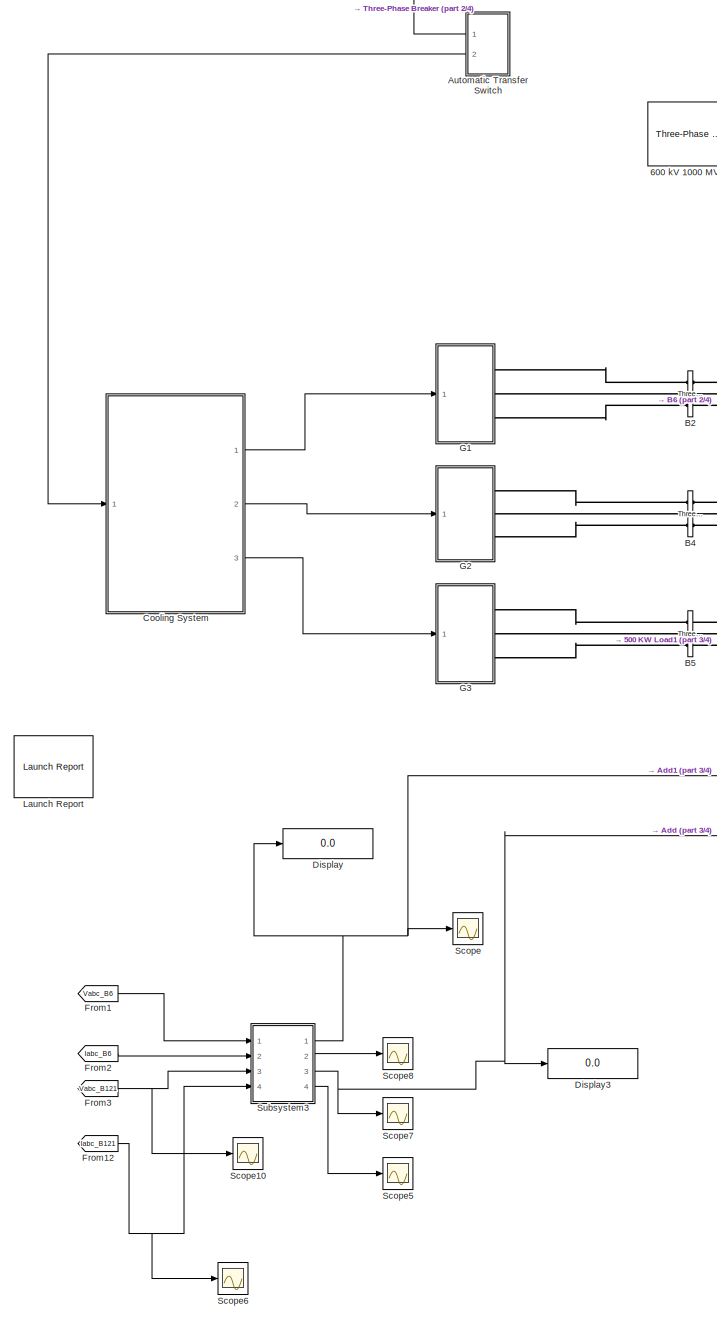
[diagram: root canvas - part 1/4, center side, full height]
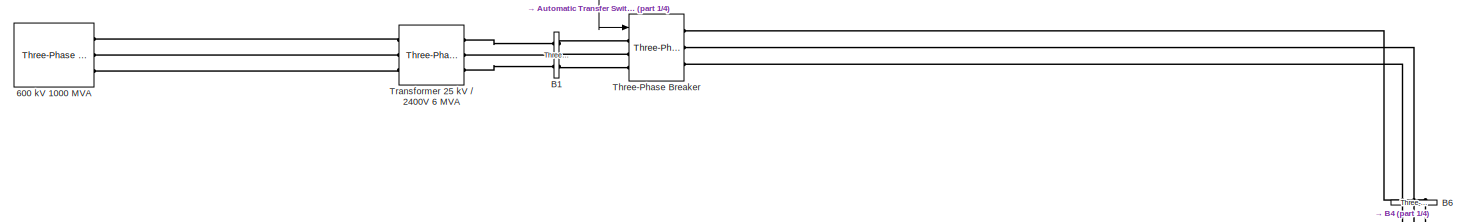
[diagram: root canvas - part 2/4, top right region]
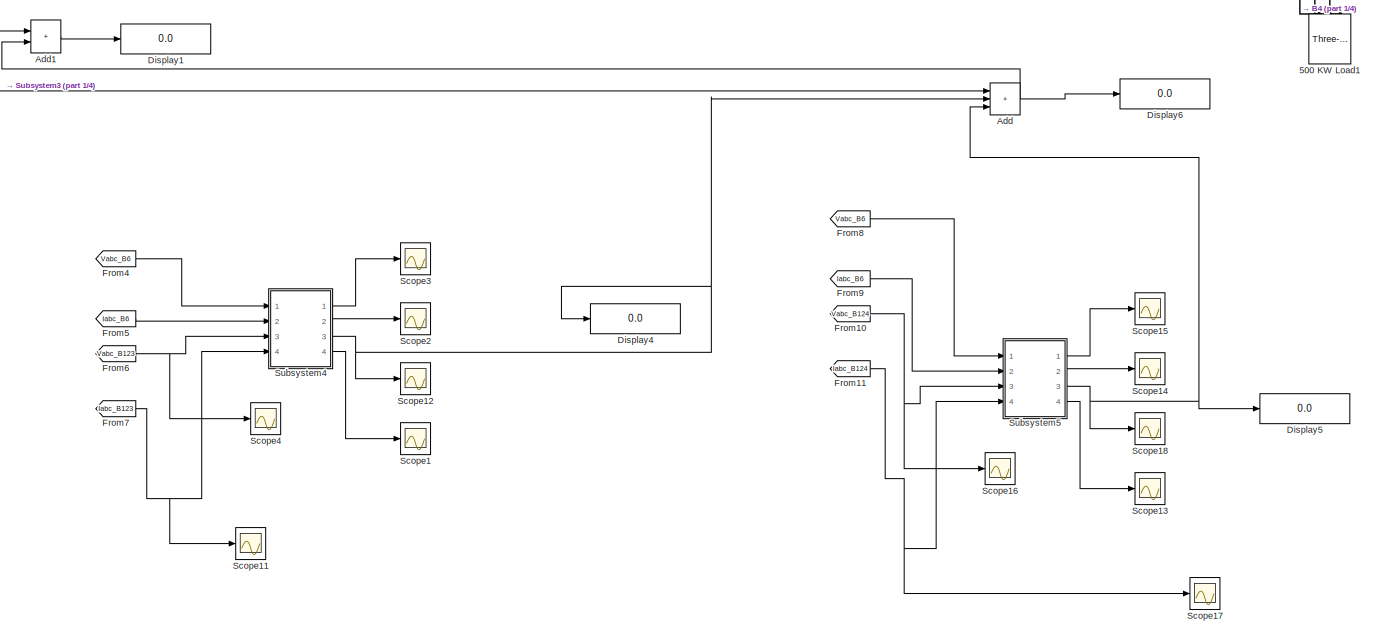
[diagram: root canvas - part 3/4, bottom right region]
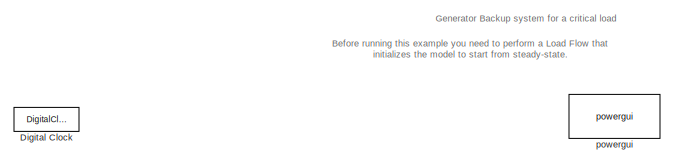
[diagram: root canvas - part 4/4, bottom left region]
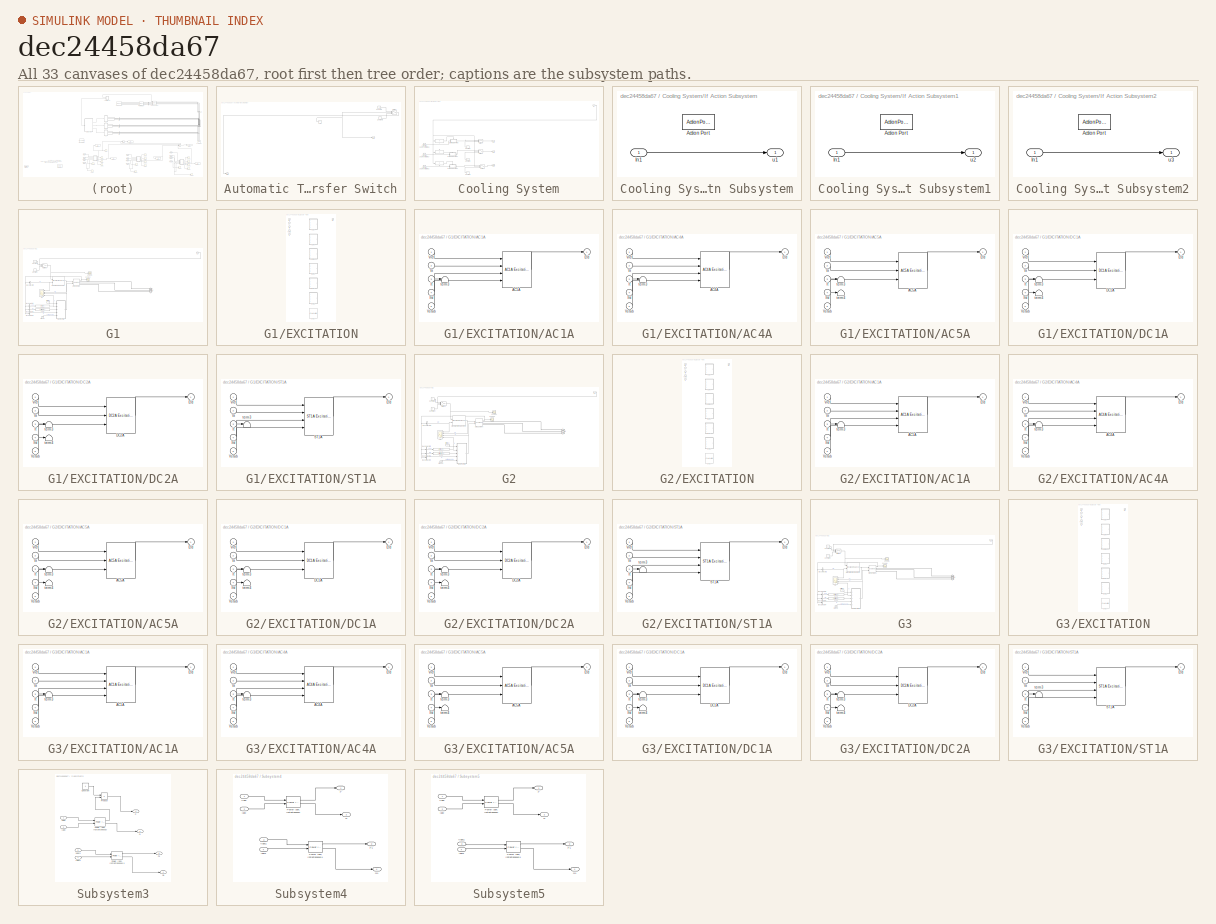
[diagram: thumbnail index - all 33 canvases of the model, root first then tree order]
MODEL slx_dec24458da67
KIND model
CONFIG AbsTol = auto
CONFIG EnableMultiTasking = off
CONFIG FixedStep = auto
CONFIG MaxStep = auto
CONFIG MinStep = auto
CONFIG RelTol = 1e-3
CONFIG SampleTimeConstraint = Unconstrained
CONFIG Solver = VariableStepAuto
CONFIG SolverName = VariableStepAuto
CONFIG StartTime = 0.0
CONFIG StopTime = 80
BLOCK [Reference] 500 KW Load1  REF=powerlib/Elements/Three-Phase
Parallel RLC Load
  AttributesFormatString = \n
  NameLocation = left
  Ports = [0, 0, 0, 0, 0, 3]
  SourceBlock = powerlib/Elements/Three-Phase\nParallel RLC Load
  SourceProductBaseCode = MT,PS
  SourceType = Three-Phase Parallel RLC Load
BLOCK [Reference] 600 kV 1000 MVA  REF=powerlib/Electrical
Sources/Three-Phase Source
  NameLocation = top
  Ports = [0, 0, 0, 0, 0, 0, 3]
  SourceBlock = powerlib/Electrical\nSources/Three-Phase Source
  SourceProductBaseCode = MT,PS
  SourceType = Three-Phase Source
BLOCK [Sum] Add
  IconShape = rectangular
  Inputs = +++
  Ports = [3, 1]
BLOCK [Sum] Add1
  IconShape = rectangular
  Ports = [2, 1]
BLOCK [SubSystem] Automatic Transfer Switch
  NameLocation = top
  Ports = [0, 2]
  RequestExecContextInheritance = off
BLOCK [Constant] Automatic Transfer Switch/ATS
  SampleTime = 1
BLOCK [Constant] Automatic Transfer Switch/Constant4
  SampleTime = 1
  Value = 0
BLOCK [Constant] Automatic Transfer Switch/Constant5
  SampleTime = 1
BLOCK [Outport] Automatic Transfer Switch/Out1
BLOCK [Outport] Automatic Transfer Switch/Out2
  Port = 2
BLOCK [Switch] Automatic Transfer Switch/Switch1
  Criteria = u2 > Threshold
  InputSameDT = off
  SaturateOnIntegerOverflow = off
BLOCK [Reference] B1  REF=powerlib/Measurements/Three-Phase
V-I Measurement
  Ports = [0, 0, 0, 0, 0, 3, 3]
  SourceBlock = powerlib/Measurements/Three-Phase\nV-I Measurement
  SourceProductBaseCode = MT,PS
  SourceType = Three-Phase VI Measurement
BLOCK [Reference] B2  REF=powerlib/Measurements/Three-Phase
V-I Measurement
  Ports = [0, 0, 0, 0, 0, 3, 3]
  SourceBlock = powerlib/Measurements/Three-Phase\nV-I Measurement
  SourceProductBaseCode = MT,PS
  SourceType = Three-Phase VI Measurement
BLOCK [Reference] B4  REF=powerlib/Measurements/Three-Phase
V-I Measurement
  Ports = [0, 0, 0, 0, 0, 3, 3]
  SourceBlock = powerlib/Measurements/Three-Phase\nV-I Measurement
  SourceProductBaseCode = MT,PS
  SourceType = Three-Phase VI Measurement
BLOCK [Reference] B5  REF=powerlib/Measurements/Three-Phase
V-I Measurement
  Ports = [0, 0, 0, 0, 0, 3, 3]
  SourceBlock = powerlib/Measurements/Three-Phase\nV-I Measurement
  SourceProductBaseCode = MT,PS
  SourceType = Three-Phase VI Measurement
BLOCK [Reference] B6  REF=powerlib/Measurements/Three-Phase
V-I Measurement
  NameLocation = left
  Ports = [0, 0, 0, 0, 0, 3, 3]
  SourceBlock = powerlib/Measurements/Three-Phase\nV-I Measurement
  SourceProductBaseCode = MT,PS
  SourceType = Three-Phase VI Measurement
BLOCK [SubSystem] Cooling System
  Ports = [1, 3]
  RequestExecContextInheritance = off
BLOCK [Constant] Cooling System/Constant1
  SampleTime = 1
  Value = 0
BLOCK [Constant] Cooling System/Constant2
  SampleTime = 1
  Value = 0
BLOCK [Constant] Cooling System/Constant6
  SampleTime = 1
  Value = 0
BLOCK [If] Cooling System/If
  IfExpression = u1 == 1
  Ports = [1, 1]
  ShowElse = off
BLOCK [SubSystem] Cooling System/If Action Subsystem
  Ports = [1, 1, 0, 0, 0, 0, 0, 1]
  RequestExecContextInheritance = off
  TreatAsAtomicUnit = on
BLOCK [ActionPort] Cooling System/If Action Subsystem/Action Port
  ActionPortLabel = if(u1 == 1)
BLOCK [Inport] Cooling System/If Action Subsystem/In1
BLOCK [Outport] Cooling System/If Action Subsystem/u1
BLOCK [SubSystem] Cooling System/If Action Subsystem1
  Ports = [1, 1, 0, 0, 0, 0, 0, 1]
  RequestExecContextInheritance = off
  TreatAsAtomicUnit = on
BLOCK [ActionPort] Cooling System/If Action Subsystem1/Action Port
  ActionPortLabel = if(u1 == 1)
BLOCK [Inport] Cooling System/If Action Subsystem1/In1
BLOCK [Outport] Cooling System/If Action Subsystem1/u2
BLOCK [SubSystem] Cooling System/If Action Subsystem2
  Ports = [1, 1, 0, 0, 0, 0, 0, 1]
  RequestExecContextInheritance = off
  TreatAsAtomicUnit = on
BLOCK [ActionPort] Cooling System/If Action Subsystem2/Action Port
  ActionPortLabel = if(u1 == 1)
BLOCK [Inport] Cooling System/If Action Subsystem2/In1
BLOCK [Outport] Cooling System/If Action Subsystem2/u3
BLOCK [If] Cooling System/If1
  IfExpression = u1 == 1
  Ports = [1, 1]
  ShowElse = off
BLOCK [If] Cooling System/If2
  IfExpression = u1 == 1
  Ports = [1, 1]
  ShowElse = off
BLOCK [Inport] Cooling System/In1
BLOCK [Outport] Cooling System/Out1
BLOCK [Outport] Cooling System/Out2
  Port = 2
BLOCK [Outport] Cooling System/Out3
  Port = 3
BLOCK [Reference] Cooling System/Repeating Sequence Interpolated6  REF=simulink/Sources/Repeating
Sequence
Interpolated
  Ports = [0, 1]
  SourceBlock = simulink/Sources/Repeating\nSequence\nInterpolated
  SourceProductBaseCode = SL
  SourceType = Repeating Sequence Interpolated
BLOCK [Reference] Cooling System/Repeating Sequence Interpolated7  REF=simulink/Sources/Repeating
Sequence
Interpolated
  Ports = [0, 1]
  SourceBlock = simulink/Sources/Repeating\nSequence\nInterpolated
  SourceProductBaseCode = SL
  SourceType = Repeating Sequence Interpolated
BLOCK [Reference] Cooling System/Repeating Sequence Interpolated8  REF=simulink/Sources/Repeating
Sequence
Interpolated
  Ports = [0, 1]
  SourceBlock = simulink/Sources/Repeating\nSequence\nInterpolated
  SourceProductBaseCode = SL
  SourceType = Repeating Sequence Interpolated
BLOCK [Switch] Cooling System/Switch2
  Criteria = u2 > Threshold
  InputSameDT = off
  SaturateOnIntegerOverflow = off
BLOCK [Switch] Cooling System/Switch3
  Criteria = u2 > Threshold
  InputSameDT = off
  SaturateOnIntegerOverflow = off
BLOCK [Switch] Cooling System/Switch4
  Criteria = u2 > Threshold
  InputSameDT = off
  SaturateOnIntegerOverflow = off
BLOCK [DigitalClock] Digital Clock
  IOType = siggen
BLOCK [Display] Display
  Decimation = 1
  Ports = [1]
BLOCK [Display] Display1
  Decimation = 1
  Ports = [1]
BLOCK [Display] Display3
  Decimation = 1
  Ports = [1]
BLOCK [Display] Display4
  Decimation = 1
  Ports = [1]
BLOCK [Display] Display5
  Decimation = 1
  Ports = [1]
BLOCK [Display] Display6
  Decimation = 1
  Ports = [1]
BLOCK [From] From1
  GotoTag = Vabc_B6
  TagVisibility = global
BLOCK [From] From10
  GotoTag = Vabc_B124
  IconDisplay = Tag and signal name
  TagVisibility = global
BLOCK [From] From11
  GotoTag = Iabc_B124
  TagVisibility = global
BLOCK [From] From12
  GotoTag = Iabc_B121
  TagVisibility = global
BLOCK [From] From2
  GotoTag = Iabc_B6
  TagVisibility = global
BLOCK [From] From3
  GotoTag = Vabc_B121
  IconDisplay = Tag and signal name
  TagVisibility = global
BLOCK [From] From4
  GotoTag = Vabc_B6
  TagVisibility = global
BLOCK [From] From5
  GotoTag = Iabc_B6
  TagVisibility = global
BLOCK [From] From6
  GotoTag = Vabc_B123
  IconDisplay = Tag and signal name
  TagVisibility = global
BLOCK [From] From7
  GotoTag = Iabc_B123
  TagVisibility = global
BLOCK [From] From8
  GotoTag = Vabc_B6
  TagVisibility = global
BLOCK [From] From9
  GotoTag = Iabc_B6
  TagVisibility = global
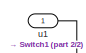
[diagram: G1 - part 1/2, top right region]
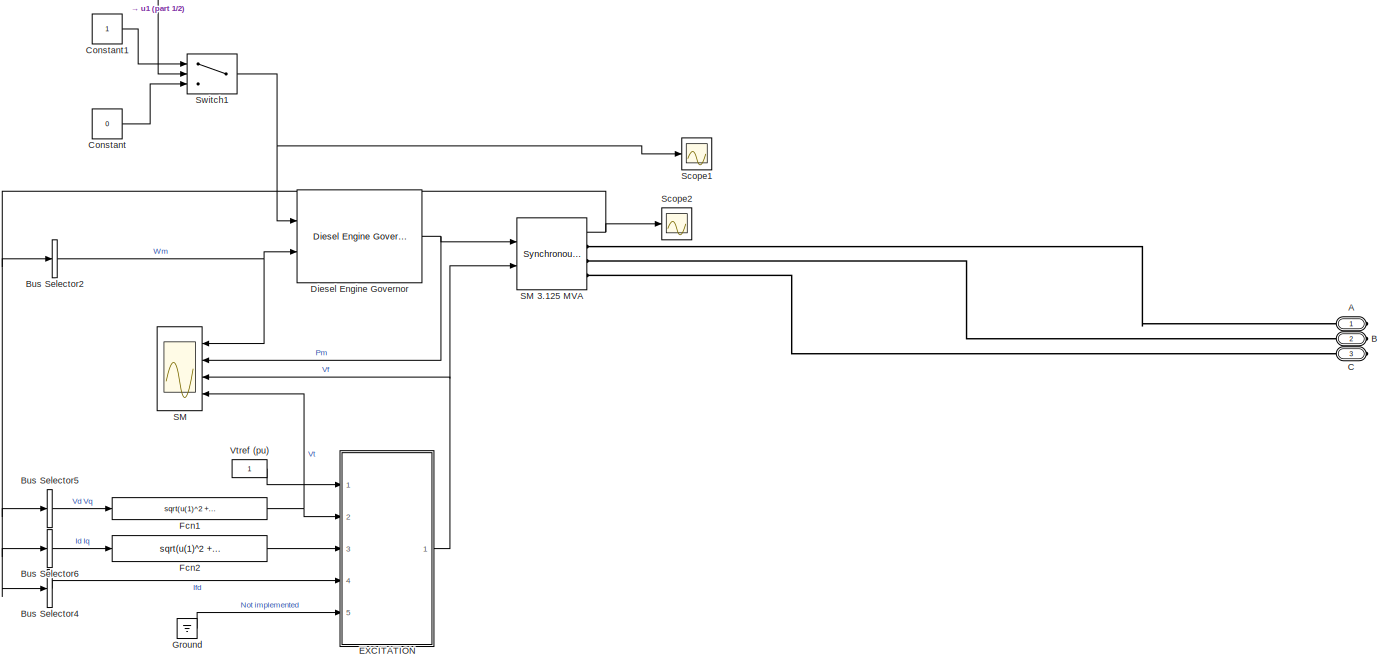
[diagram: G1 - part 2/2, center side, full height]
BLOCK [SubSystem] G1
  Ports = [1, 0, 0, 0, 0, 0, 3]
  RequestExecContextInheritance = off
BLOCK [PMIOPort] G1/A
  Side = Right
BLOCK [PMIOPort] G1/B
  Port = 2
  Side = Right
BLOCK [BusSelector] G1/Bus Selector2
  NameLocation = top
  OutputAsBus = on
  OutputSignals = Mechanical.Rotor speed  wm  (pu)
  Ports = [1, 1]
BLOCK [BusSelector] G1/Bus Selector4
  OutputAsBus = on
  OutputSignals = dq0 components.Field current  ifd (pu)
  Ports = [1, 1]
BLOCK [BusSelector] G1/Bus Selector5
  OutputAsBus = on
  OutputSignals = dq0 components.Stator voltage  vd (pu),dq0 components.Stator voltage  vq (pu)
  Ports = [1, 1]
BLOCK [BusSelector] G1/Bus Selector6
  OutputAsBus = on
  OutputSignals = dq0 components.Stator current  id (pu),dq0 components.Stator current  iq (pu)
  Ports = [1, 1]
BLOCK [PMIOPort] G1/C
  Port = 3
  Side = Right
BLOCK [Constant] G1/Constant
  Value = 0
BLOCK [Constant] G1/Constant1
BLOCK [Reference] G1/Diesel Engine Governor  REF=spsDieselMotorModel/Diesel Engine Governor
  Ports = [2, 1]
  SourceBlock = spsDieselMotorModel/Diesel Engine Governor
  SourceProductBaseCode = MT,PS
  SourceType = Diesel Engine & Governor
BLOCK [SubSystem] G1/EXCITATION
  AttributesFormatString = %<BlockChoice>
  LabelModeActiveChoice = Variant1
  Ports = [5, 1]
  RequestExecContextInheritance = off
  Variant = on
  VariantControlMode = Label
BLOCK [SubSystem] G1/EXCITATION/AC1A
  Ports = [5, 1]
  RequestExecContextInheritance = off
  VariantControl = Variant1
BLOCK [Reference] G1/EXCITATION/AC1A/AC1A  REF=sps_avr/AC1A
Excitation System
  Ports = [4, 1]
  SourceBlock = sps_avr/AC1A\nExcitation System
  SourceProductBaseCode = MT,PS
  SourceType = AC1A Excitation System
BLOCK [Outport] G1/EXCITATION/AC1A/Efd
  VectorParamsAs1DForOutWhenUnconnected = off
BLOCK [Inport] G1/EXCITATION/AC1A/Ifd
  Port = 4
BLOCK [Inport] G1/EXCITATION/AC1A/It
  Port = 3
BLOCK [Inport] G1/EXCITATION/AC1A/Vref
BLOCK [Inport] G1/EXCITATION/AC1A/Vstab
  Port = 5
BLOCK [Inport] G1/EXCITATION/AC1A/Vt
  Port = 2
BLOCK [Terminator] G1/EXCITATION/AC1A/term3
BLOCK [SubSystem] G1/EXCITATION/AC4A
  Ports = [5, 1]
  RequestExecContextInheritance = off
  VariantControl = Variant2
BLOCK [Reference] G1/EXCITATION/AC4A/AC4A  REF=sps_avr/AC4A
Excitation System
  Ports = [4, 1]
  SourceBlock = sps_avr/AC4A\nExcitation System
  SourceProductBaseCode = MT,PS
  SourceType = AC4A Excitation System
BLOCK [Outport] G1/EXCITATION/AC4A/Efd
  VectorParamsAs1DForOutWhenUnconnected = off
BLOCK [Inport] G1/EXCITATION/AC4A/Ifd
  Port = 4
BLOCK [Inport] G1/EXCITATION/AC4A/It
  Port = 3
BLOCK [Inport] G1/EXCITATION/AC4A/Vref
BLOCK [Inport] G1/EXCITATION/AC4A/Vstab
  Port = 5
BLOCK [Inport] G1/EXCITATION/AC4A/Vt
  Port = 2
BLOCK [Terminator] G1/EXCITATION/AC4A/term3
BLOCK [SubSystem] G1/EXCITATION/AC5A
  Ports = [5, 1]
  RequestExecContextInheritance = off
  VariantControl = Variant3
BLOCK [Reference] G1/EXCITATION/AC5A/AC5A  REF=sps_avr/AC5A
Excitation System
  Ports = [3, 1]
  SourceBlock = sps_avr/AC5A\nExcitation System
  SourceProductBaseCode = MT,PS
  SourceType = AC5A Excitation System
BLOCK [Outport] G1/EXCITATION/AC5A/Efd
  VectorParamsAs1DForOutWhenUnconnected = off
BLOCK [Inport] G1/EXCITATION/AC5A/Ifd
  Port = 4
BLOCK [Inport] G1/EXCITATION/AC5A/It
  Port = 3
BLOCK [Inport] G1/EXCITATION/AC5A/Vref
BLOCK [Inport] G1/EXCITATION/AC5A/Vstab
  Port = 5
BLOCK [Inport] G1/EXCITATION/AC5A/Vt
  Port = 2
BLOCK [Terminator] G1/EXCITATION/AC5A/term3
BLOCK [Terminator] G1/EXCITATION/AC5A/term4
BLOCK [SubSystem] G1/EXCITATION/DC1A
  Ports = [5, 1]
  RequestExecContextInheritance = off
  VariantControl = Variant4
BLOCK [Reference] G1/EXCITATION/DC1A/DC1A  REF=sps_avr/DC1A
Excitation System
  Ports = [3, 1]
  SourceBlock = sps_avr/DC1A\nExcitation System
  SourceProductBaseCode = MT,PS
  SourceType = DC1A Excitation System
BLOCK [Outport] G1/EXCITATION/DC1A/Efd
  VectorParamsAs1DForOutWhenUnconnected = off
BLOCK [Inport] G1/EXCITATION/DC1A/Ifd
  Port = 4
BLOCK [Inport] G1/EXCITATION/DC1A/It
  Port = 3
BLOCK [Inport] G1/EXCITATION/DC1A/Vref
BLOCK [Inport] G1/EXCITATION/DC1A/Vstab
  Port = 5
BLOCK [Inport] G1/EXCITATION/DC1A/Vt
  Port = 2
BLOCK [Terminator] G1/EXCITATION/DC1A/term3
BLOCK [Terminator] G1/EXCITATION/DC1A/term4
BLOCK [SubSystem] G1/EXCITATION/DC2A
  Ports = [5, 1]
  RequestExecContextInheritance = off
  VariantControl = Variant5
BLOCK [Reference] G1/EXCITATION/DC2A/DC2A  REF=sps_avr/DC2A
Excitation System
  Ports = [3, 1]
  SourceBlock = sps_avr/DC2A\nExcitation System
  SourceProductBaseCode = MT,PS
  SourceType = DC2A Excitation System
BLOCK [Outport] G1/EXCITATION/DC2A/Efd
  VectorParamsAs1DForOutWhenUnconnected = off
BLOCK [Inport] G1/EXCITATION/DC2A/Ifd
  Port = 4
BLOCK [Inport] G1/EXCITATION/DC2A/It
  Port = 3
BLOCK [Inport] G1/EXCITATION/DC2A/Vref
BLOCK [Inport] G1/EXCITATION/DC2A/Vstab
  Port = 5
BLOCK [Inport] G1/EXCITATION/DC2A/Vt
  Port = 2
BLOCK [Terminator] G1/EXCITATION/DC2A/term3
BLOCK [Terminator] G1/EXCITATION/DC2A/term4
BLOCK [Outport] G1/EXCITATION/Efd
  VectorParamsAs1DForOutWhenUnconnected = off
BLOCK [Inport] G1/EXCITATION/Ifd
  Port = 4
BLOCK [Inport] G1/EXCITATION/It
  Port = 3
BLOCK [SubSystem] G1/EXCITATION/ST1A
  Ports = [5, 1]
  RequestExecContextInheritance = off
  VariantControl = Variant6
BLOCK [Outport] G1/EXCITATION/ST1A/Efd
  VectorParamsAs1DForOutWhenUnconnected = off
BLOCK [Inport] G1/EXCITATION/ST1A/Ifd
  Port = 4
BLOCK [Inport] G1/EXCITATION/ST1A/It
  Port = 3
BLOCK [Reference] G1/EXCITATION/ST1A/ST1A  REF=sps_avr/ST1A
Excitation System
  Ports = [4, 1]
  SourceBlock = sps_avr/ST1A\nExcitation System
  SourceProductBaseCode = MT,PS
  SourceType = ST1A Excitation System
BLOCK [Inport] G1/EXCITATION/ST1A/Vref
BLOCK [Inport] G1/EXCITATION/ST1A/Vstab
  Port = 5
BLOCK [Inport] G1/EXCITATION/ST1A/Vt
  Port = 2
BLOCK [Terminator] G1/EXCITATION/ST1A/term3
BLOCK [Reference] G1/EXCITATION/ST2A  REF=sps_avr/ST2A
Excitation System
  Ports = [5, 1]
  SourceBlock = sps_avr/ST2A\nExcitation System
  SourceProductBaseCode = MT,PS
  SourceType = ST2A Excitation System
BLOCK [Inport] G1/EXCITATION/Vref
BLOCK [Inport] G1/EXCITATION/Vstab
  Port = 5
BLOCK [Inport] G1/EXCITATION/Vt
  Port = 2
BLOCK [Fcn] G1/Fcn1
  Expr = sqrt(u(1)^2 + u(2)^2)
BLOCK [Fcn] G1/Fcn2
  Expr = sqrt(u(1)^2 + u(2)^2)
BLOCK [Ground] G1/Ground
BLOCK [Scope] G1/SM
  Floating = off
  NameLocation = top
  NumInputPorts = 4
  Ports = [4]
  ScopeSpecificationString = Simulink.scopes.TimeScopeBlockCfg('CurrentConfiguration', extmgr.ConfigurationSet(extmgr.Configuration('Core','General UI',true),extmgr.Configuration('Core','Source UI',true),extmgr.Configuration('Sources','WiredSimulink',true,'DataLoggingSaveFormat','Array','DataLoggingDecimation','1','DataLoggingDecimateData',true),extmgr.Configuration('Visuals','Time Domain',true,'SerializedDisplays',{struct('M...<+3685ch>  <repeated x3 — deduplicated; at blocks: SM>
BLOCK [Reference] G1/SM 3.125 MVA  REF=powerlib/Machines/Synchronous Machine
pu Standard
  AttributesFormatString = \n\n
  Ports = [2, 1, 0, 0, 0, 0, 3]
  SourceBlock = powerlib/Machines/Synchronous Machine\npu Standard
  SourceProductBaseCode = MT,PS
  SourceType = Synchronous Machine
BLOCK [Scope] G1/Scope1
  Floating = off
  NumInputPorts = 1
  Ports = [1]
  ScopeSpecificationString = Simulink.scopes.TimeScopeBlockCfg('CurrentConfiguration', extmgr.ConfigurationSet(extmgr.Configuration('Core','General UI',true),extmgr.Configuration('Core','Source UI',true),extmgr.Configuration('Sources','WiredSimulink',true,'DataLoggingVariableName','ScopeData1'),extmgr.Configuration('Visuals','Time Domain',true,'SerializedDisplays',{struct('MinYLimReal','-1.00000','MaxYLimReal','1.00000','YLab...<+1437ch>  <repeated x3 — deduplicated; at blocks: Scope1>
BLOCK [Scope] G1/Scope2
  Floating = off
  NumInputPorts = 1
  Ports = [1]
  ScopeSpecificationString = Simulink.scopes.TimeScopeBlockCfg('CurrentConfiguration', extmgr.ConfigurationSet(extmgr.Configuration('Core','General UI',true),extmgr.Configuration('Core','Source UI',true),extmgr.Configuration('Sources','WiredSimulink',true,'DataLoggingVariableName','ScopeData4'),extmgr.Configuration('Visuals','Time Domain',true,'SerializedDisplays',{struct('MinYLimReal','-3.47618','MaxYLimReal','257.3983','YLa...<+3245ch>  <repeated x3 — deduplicated; at blocks: Scope2>
BLOCK [Switch] G1/Switch1
  Criteria = u2 > Threshold
  InputSameDT = off
  SaturateOnIntegerOverflow = off
BLOCK [Constant] G1/Vtref (pu) 
  NameLocation = top
BLOCK [Inport] G1/u1
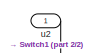
[diagram: G2 - part 1/2, top right region]
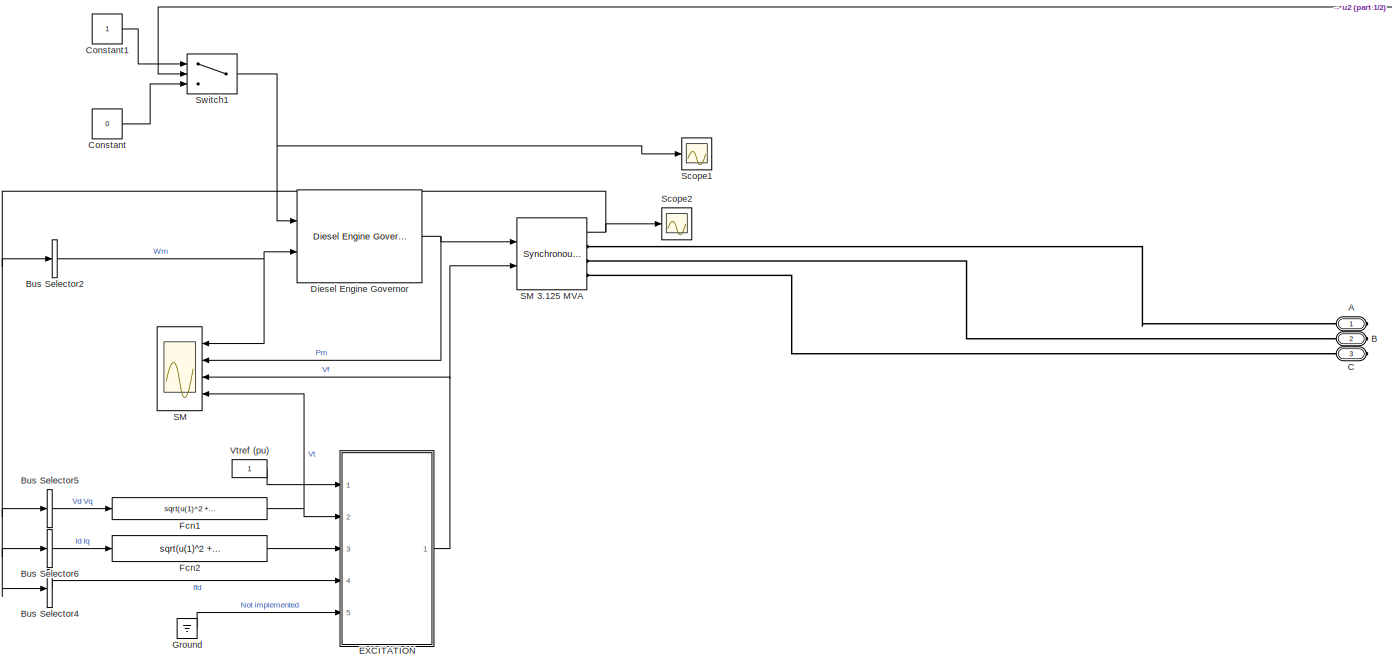
[diagram: G2 - part 2/2, most of the canvas]
BLOCK [SubSystem] G2
  Ports = [1, 0, 0, 0, 0, 0, 3]
  RequestExecContextInheritance = off
BLOCK [PMIOPort] G2/A
  Side = Right
BLOCK [PMIOPort] G2/B
  Port = 2
  Side = Right
BLOCK [BusSelector] G2/Bus Selector2
  NameLocation = top
  OutputAsBus = on
  OutputSignals = Mechanical.Rotor speed  wm  (pu)
  Ports = [1, 1]
BLOCK [BusSelector] G2/Bus Selector4
  OutputAsBus = on
  OutputSignals = dq0 components.Field current  ifd (pu)
  Ports = [1, 1]
BLOCK [BusSelector] G2/Bus Selector5
  OutputAsBus = on
  OutputSignals = dq0 components.Stator voltage  vd (pu),dq0 components.Stator voltage  vq (pu)
  Ports = [1, 1]
BLOCK [BusSelector] G2/Bus Selector6
  OutputAsBus = on
  OutputSignals = dq0 components.Stator current  id (pu),dq0 components.Stator current  iq (pu)
  Ports = [1, 1]
BLOCK [PMIOPort] G2/C
  Port = 3
  Side = Right
BLOCK [Constant] G2/Constant
  Value = 0
BLOCK [Constant] G2/Constant1
BLOCK [Reference] G2/Diesel Engine Governor  REF=spsDieselMotorModel/Diesel Engine Governor
  Ports = [2, 1]
  SourceBlock = spsDieselMotorModel/Diesel Engine Governor
  SourceProductBaseCode = MT,PS
  SourceType = Diesel Engine & Governor
BLOCK [SubSystem] G2/EXCITATION
  AttributesFormatString = %<BlockChoice>
  LabelModeActiveChoice = Variant1
  Ports = [5, 1]
  RequestExecContextInheritance = off
  Variant = on
  VariantControlMode = Label
BLOCK [SubSystem] G2/EXCITATION/AC1A
  Ports = [5, 1]
  RequestExecContextInheritance = off
  VariantControl = Variant1
BLOCK [Reference] G2/EXCITATION/AC1A/AC1A  REF=sps_avr/AC1A
Excitation System
  Ports = [4, 1]
  SourceBlock = sps_avr/AC1A\nExcitation System
  SourceProductBaseCode = MT,PS
  SourceType = AC1A Excitation System
BLOCK [Outport] G2/EXCITATION/AC1A/Efd
  VectorParamsAs1DForOutWhenUnconnected = off
BLOCK [Inport] G2/EXCITATION/AC1A/Ifd
  Port = 4
BLOCK [Inport] G2/EXCITATION/AC1A/It
  Port = 3
BLOCK [Inport] G2/EXCITATION/AC1A/Vref
BLOCK [Inport] G2/EXCITATION/AC1A/Vstab
  Port = 5
BLOCK [Inport] G2/EXCITATION/AC1A/Vt
  Port = 2
BLOCK [Terminator] G2/EXCITATION/AC1A/term3
BLOCK [SubSystem] G2/EXCITATION/AC4A
  Ports = [5, 1]
  RequestExecContextInheritance = off
  VariantControl = Variant2
BLOCK [Reference] G2/EXCITATION/AC4A/AC4A  REF=sps_avr/AC4A
Excitation System
  Ports = [4, 1]
  SourceBlock = sps_avr/AC4A\nExcitation System
  SourceProductBaseCode = MT,PS
  SourceType = AC4A Excitation System
BLOCK [Outport] G2/EXCITATION/AC4A/Efd
  VectorParamsAs1DForOutWhenUnconnected = off
BLOCK [Inport] G2/EXCITATION/AC4A/Ifd
  Port = 4
BLOCK [Inport] G2/EXCITATION/AC4A/It
  Port = 3
BLOCK [Inport] G2/EXCITATION/AC4A/Vref
BLOCK [Inport] G2/EXCITATION/AC4A/Vstab
  Port = 5
BLOCK [Inport] G2/EXCITATION/AC4A/Vt
  Port = 2
BLOCK [Terminator] G2/EXCITATION/AC4A/term3
BLOCK [SubSystem] G2/EXCITATION/AC5A
  Ports = [5, 1]
  RequestExecContextInheritance = off
  VariantControl = Variant3
BLOCK [Reference] G2/EXCITATION/AC5A/AC5A  REF=sps_avr/AC5A
Excitation System
  Ports = [3, 1]
  SourceBlock = sps_avr/AC5A\nExcitation System
  SourceProductBaseCode = MT,PS
  SourceType = AC5A Excitation System
BLOCK [Outport] G2/EXCITATION/AC5A/Efd
  VectorParamsAs1DForOutWhenUnconnected = off
BLOCK [Inport] G2/EXCITATION/AC5A/Ifd
  Port = 4
BLOCK [Inport] G2/EXCITATION/AC5A/It
  Port = 3
BLOCK [Inport] G2/EXCITATION/AC5A/Vref
BLOCK [Inport] G2/EXCITATION/AC5A/Vstab
  Port = 5
BLOCK [Inport] G2/EXCITATION/AC5A/Vt
  Port = 2
BLOCK [Terminator] G2/EXCITATION/AC5A/term3
BLOCK [Terminator] G2/EXCITATION/AC5A/term4
BLOCK [SubSystem] G2/EXCITATION/DC1A
  Ports = [5, 1]
  RequestExecContextInheritance = off
  VariantControl = Variant4
BLOCK [Reference] G2/EXCITATION/DC1A/DC1A  REF=sps_avr/DC1A
Excitation System
  Ports = [3, 1]
  SourceBlock = sps_avr/DC1A\nExcitation System
  SourceProductBaseCode = MT,PS
  SourceType = DC1A Excitation System
BLOCK [Outport] G2/EXCITATION/DC1A/Efd
  VectorParamsAs1DForOutWhenUnconnected = off
BLOCK [Inport] G2/EXCITATION/DC1A/Ifd
  Port = 4
BLOCK [Inport] G2/EXCITATION/DC1A/It
  Port = 3
BLOCK [Inport] G2/EXCITATION/DC1A/Vref
BLOCK [Inport] G2/EXCITATION/DC1A/Vstab
  Port = 5
BLOCK [Inport] G2/EXCITATION/DC1A/Vt
  Port = 2
BLOCK [Terminator] G2/EXCITATION/DC1A/term3
BLOCK [Terminator] G2/EXCITATION/DC1A/term4
BLOCK [SubSystem] G2/EXCITATION/DC2A
  Ports = [5, 1]
  RequestExecContextInheritance = off
  VariantControl = Variant5
BLOCK [Reference] G2/EXCITATION/DC2A/DC2A  REF=sps_avr/DC2A
Excitation System
  Ports = [3, 1]
  SourceBlock = sps_avr/DC2A\nExcitation System
  SourceProductBaseCode = MT,PS
  SourceType = DC2A Excitation System
BLOCK [Outport] G2/EXCITATION/DC2A/Efd
  VectorParamsAs1DForOutWhenUnconnected = off
BLOCK [Inport] G2/EXCITATION/DC2A/Ifd
  Port = 4
BLOCK [Inport] G2/EXCITATION/DC2A/It
  Port = 3
BLOCK [Inport] G2/EXCITATION/DC2A/Vref
BLOCK [Inport] G2/EXCITATION/DC2A/Vstab
  Port = 5
BLOCK [Inport] G2/EXCITATION/DC2A/Vt
  Port = 2
BLOCK [Terminator] G2/EXCITATION/DC2A/term3
BLOCK [Terminator] G2/EXCITATION/DC2A/term4
BLOCK [Outport] G2/EXCITATION/Efd
  VectorParamsAs1DForOutWhenUnconnected = off
BLOCK [Inport] G2/EXCITATION/Ifd
  Port = 4
BLOCK [Inport] G2/EXCITATION/It
  Port = 3
BLOCK [SubSystem] G2/EXCITATION/ST1A
  Ports = [5, 1]
  RequestExecContextInheritance = off
  VariantControl = Variant6
BLOCK [Outport] G2/EXCITATION/ST1A/Efd
  VectorParamsAs1DForOutWhenUnconnected = off
BLOCK [Inport] G2/EXCITATION/ST1A/Ifd
  Port = 4
BLOCK [Inport] G2/EXCITATION/ST1A/It
  Port = 3
BLOCK [Reference] G2/EXCITATION/ST1A/ST1A  REF=sps_avr/ST1A
Excitation System
  Ports = [4, 1]
  SourceBlock = sps_avr/ST1A\nExcitation System
  SourceProductBaseCode = MT,PS
  SourceType = ST1A Excitation System
BLOCK [Inport] G2/EXCITATION/ST1A/Vref
BLOCK [Inport] G2/EXCITATION/ST1A/Vstab
  Port = 5
BLOCK [Inport] G2/EXCITATION/ST1A/Vt
  Port = 2
BLOCK [Terminator] G2/EXCITATION/ST1A/term3
BLOCK [Reference] G2/EXCITATION/ST2A  REF=sps_avr/ST2A
Excitation System
  Ports = [5, 1]
  SourceBlock = sps_avr/ST2A\nExcitation System
  SourceProductBaseCode = MT,PS
  SourceType = ST2A Excitation System
BLOCK [Inport] G2/EXCITATION/Vref
BLOCK [Inport] G2/EXCITATION/Vstab
  Port = 5
BLOCK [Inport] G2/EXCITATION/Vt
  Port = 2
BLOCK [Fcn] G2/Fcn1
  Expr = sqrt(u(1)^2 + u(2)^2)
BLOCK [Fcn] G2/Fcn2
  Expr = sqrt(u(1)^2 + u(2)^2)
BLOCK [Ground] G2/Ground
BLOCK [Scope] G2/SM
  Floating = off
  NameLocation = top
  NumInputPorts = 4
  Ports = [4]
BLOCK [Reference] G2/SM 3.125 MVA  REF=powerlib/Machines/Synchronous Machine
pu Standard
  AttributesFormatString = \n\n
  Ports = [2, 1, 0, 0, 0, 0, 3]
  SourceBlock = powerlib/Machines/Synchronous Machine\npu Standard
  SourceProductBaseCode = MT,PS
  SourceType = Synchronous Machine
BLOCK [Scope] G2/Scope1
  Floating = off
  NumInputPorts = 1
  Ports = [1]
BLOCK [Scope] G2/Scope2
  Floating = off
  NumInputPorts = 1
  Ports = [1]
BLOCK [Switch] G2/Switch1
  Criteria = u2 > Threshold
  InputSameDT = off
  SaturateOnIntegerOverflow = off
BLOCK [Constant] G2/Vtref (pu) 
  NameLocation = top
BLOCK [Inport] G2/u2
BLOCK [SubSystem] G3
  Ports = [1, 0, 0, 0, 0, 0, 3]
  RequestExecContextInheritance = off
BLOCK [PMIOPort] G3/A
  Side = Right
BLOCK [PMIOPort] G3/B
  Port = 2
  Side = Right
BLOCK [BusSelector] G3/Bus Selector2
  NameLocation = top
  OutputAsBus = on
  OutputSignals = Mechanical.Rotor speed  wm  (pu)
  Ports = [1, 1]
BLOCK [BusSelector] G3/Bus Selector4
  OutputAsBus = on
  OutputSignals = dq0 components.Field current  ifd (pu)
  Ports = [1, 1]
BLOCK [BusSelector] G3/Bus Selector5
  OutputAsBus = on
  OutputSignals = dq0 components.Stator voltage  vd (pu),dq0 components.Stator voltage  vq (pu)
  Ports = [1, 1]
BLOCK [BusSelector] G3/Bus Selector6
  OutputAsBus = on
  OutputSignals = dq0 components.Stator current  id (pu),dq0 components.Stator current  iq (pu)
  Ports = [1, 1]
BLOCK [PMIOPort] G3/C
  Port = 3
  Side = Right
BLOCK [Constant] G3/Constant
  Value = 0
BLOCK [Constant] G3/Constant1
BLOCK [Reference] G3/Diesel Engine Governor  REF=spsDieselMotorModel/Diesel Engine Governor
  Ports = [2, 1]
  SourceBlock = spsDieselMotorModel/Diesel Engine Governor
  SourceProductBaseCode = MT,PS
  SourceType = Diesel Engine & Governor
BLOCK [SubSystem] G3/EXCITATION
  AttributesFormatString = %<BlockChoice>
  LabelModeActiveChoice = Variant1
  Ports = [5, 1]
  RequestExecContextInheritance = off
  Variant = on
  VariantControlMode = Label
BLOCK [SubSystem] G3/EXCITATION/AC1A
  Ports = [5, 1]
  RequestExecContextInheritance = off
  VariantControl = Variant1
BLOCK [Reference] G3/EXCITATION/AC1A/AC1A  REF=sps_avr/AC1A
Excitation System
  Ports = [4, 1]
  SourceBlock = sps_avr/AC1A\nExcitation System
  SourceProductBaseCode = MT,PS
  SourceType = AC1A Excitation System
BLOCK [Outport] G3/EXCITATION/AC1A/Efd
  VectorParamsAs1DForOutWhenUnconnected = off
BLOCK [Inport] G3/EXCITATION/AC1A/Ifd
  Port = 4
BLOCK [Inport] G3/EXCITATION/AC1A/It
  Port = 3
BLOCK [Inport] G3/EXCITATION/AC1A/Vref
BLOCK [Inport] G3/EXCITATION/AC1A/Vstab
  Port = 5
BLOCK [Inport] G3/EXCITATION/AC1A/Vt
  Port = 2
BLOCK [Terminator] G3/EXCITATION/AC1A/term3
BLOCK [SubSystem] G3/EXCITATION/AC4A
  Ports = [5, 1]
  RequestExecContextInheritance = off
  VariantControl = Variant2
BLOCK [Reference] G3/EXCITATION/AC4A/AC4A  REF=sps_avr/AC4A
Excitation System
  Ports = [4, 1]
  SourceBlock = sps_avr/AC4A\nExcitation System
  SourceProductBaseCode = MT,PS
  SourceType = AC4A Excitation System
BLOCK [Outport] G3/EXCITATION/AC4A/Efd
  VectorParamsAs1DForOutWhenUnconnected = off
BLOCK [Inport] G3/EXCITATION/AC4A/Ifd
  Port = 4
BLOCK [Inport] G3/EXCITATION/AC4A/It
  Port = 3
BLOCK [Inport] G3/EXCITATION/AC4A/Vref
BLOCK [Inport] G3/EXCITATION/AC4A/Vstab
  Port = 5
BLOCK [Inport] G3/EXCITATION/AC4A/Vt
  Port = 2
BLOCK [Terminator] G3/EXCITATION/AC4A/term3
BLOCK [SubSystem] G3/EXCITATION/AC5A
  Ports = [5, 1]
  RequestExecContextInheritance = off
  VariantControl = Variant3
BLOCK [Reference] G3/EXCITATION/AC5A/AC5A  REF=sps_avr/AC5A
Excitation System
  Ports = [3, 1]
  SourceBlock = sps_avr/AC5A\nExcitation System
  SourceProductBaseCode = MT,PS
  SourceType = AC5A Excitation System
BLOCK [Outport] G3/EXCITATION/AC5A/Efd
  VectorParamsAs1DForOutWhenUnconnected = off
BLOCK [Inport] G3/EXCITATION/AC5A/Ifd
  Port = 4
BLOCK [Inport] G3/EXCITATION/AC5A/It
  Port = 3
BLOCK [Inport] G3/EXCITATION/AC5A/Vref
BLOCK [Inport] G3/EXCITATION/AC5A/Vstab
  Port = 5
BLOCK [Inport] G3/EXCITATION/AC5A/Vt
  Port = 2
BLOCK [Terminator] G3/EXCITATION/AC5A/term3
BLOCK [Terminator] G3/EXCITATION/AC5A/term4
BLOCK [SubSystem] G3/EXCITATION/DC1A
  Ports = [5, 1]
  RequestExecContextInheritance = off
  VariantControl = Variant4
BLOCK [Reference] G3/EXCITATION/DC1A/DC1A  REF=sps_avr/DC1A
Excitation System
  Ports = [3, 1]
  SourceBlock = sps_avr/DC1A\nExcitation System
  SourceProductBaseCode = MT,PS
  SourceType = DC1A Excitation System
BLOCK [Outport] G3/EXCITATION/DC1A/Efd
  VectorParamsAs1DForOutWhenUnconnected = off
BLOCK [Inport] G3/EXCITATION/DC1A/Ifd
  Port = 4
BLOCK [Inport] G3/EXCITATION/DC1A/It
  Port = 3
BLOCK [Inport] G3/EXCITATION/DC1A/Vref
BLOCK [Inport] G3/EXCITATION/DC1A/Vstab
  Port = 5
BLOCK [Inport] G3/EXCITATION/DC1A/Vt
  Port = 2
BLOCK [Terminator] G3/EXCITATION/DC1A/term3
BLOCK [Terminator] G3/EXCITATION/DC1A/term4
BLOCK [SubSystem] G3/EXCITATION/DC2A
  Ports = [5, 1]
  RequestExecContextInheritance = off
  VariantControl = Variant5
BLOCK [Reference] G3/EXCITATION/DC2A/DC2A  REF=sps_avr/DC2A
Excitation System
  Ports = [3, 1]
  SourceBlock = sps_avr/DC2A\nExcitation System
  SourceProductBaseCode = MT,PS
  SourceType = DC2A Excitation System
BLOCK [Outport] G3/EXCITATION/DC2A/Efd
  VectorParamsAs1DForOutWhenUnconnected = off
BLOCK [Inport] G3/EXCITATION/DC2A/Ifd
  Port = 4
BLOCK [Inport] G3/EXCITATION/DC2A/It
  Port = 3
BLOCK [Inport] G3/EXCITATION/DC2A/Vref
BLOCK [Inport] G3/EXCITATION/DC2A/Vstab
  Port = 5
BLOCK [Inport] G3/EXCITATION/DC2A/Vt
  Port = 2
BLOCK [Terminator] G3/EXCITATION/DC2A/term3
BLOCK [Terminator] G3/EXCITATION/DC2A/term4
BLOCK [Outport] G3/EXCITATION/Efd
  VectorParamsAs1DForOutWhenUnconnected = off
BLOCK [Inport] G3/EXCITATION/Ifd
  Port = 4
BLOCK [Inport] G3/EXCITATION/It
  Port = 3
BLOCK [SubSystem] G3/EXCITATION/ST1A
  Ports = [5, 1]
  RequestExecContextInheritance = off
  VariantControl = Variant6
BLOCK [Outport] G3/EXCITATION/ST1A/Efd
  VectorParamsAs1DForOutWhenUnconnected = off
BLOCK [Inport] G3/EXCITATION/ST1A/Ifd
  Port = 4
BLOCK [Inport] G3/EXCITATION/ST1A/It
  Port = 3
BLOCK [Reference] G3/EXCITATION/ST1A/ST1A  REF=sps_avr/ST1A
Excitation System
  Ports = [4, 1]
  SourceBlock = sps_avr/ST1A\nExcitation System
  SourceProductBaseCode = MT,PS
  SourceType = ST1A Excitation System
BLOCK [Inport] G3/EXCITATION/ST1A/Vref
BLOCK [Inport] G3/EXCITATION/ST1A/Vstab
  Port = 5
BLOCK [Inport] G3/EXCITATION/ST1A/Vt
  Port = 2
BLOCK [Terminator] G3/EXCITATION/ST1A/term3
BLOCK [Reference] G3/EXCITATION/ST2A  REF=sps_avr/ST2A
Excitation System
  Ports = [5, 1]
  SourceBlock = sps_avr/ST2A\nExcitation System
  SourceProductBaseCode = MT,PS
  SourceType = ST2A Excitation System
BLOCK [Inport] G3/EXCITATION/Vref
BLOCK [Inport] G3/EXCITATION/Vstab
  Port = 5
BLOCK [Inport] G3/EXCITATION/Vt
  Port = 2
BLOCK [Fcn] G3/Fcn1
  Expr = sqrt(u(1)^2 + u(2)^2)
BLOCK [Fcn] G3/Fcn2
  Expr = sqrt(u(1)^2 + u(2)^2)
BLOCK [Ground] G3/Ground
BLOCK [Scope] G3/SM
  Floating = off
  NameLocation = top
  NumInputPorts = 4
  Ports = [4]
BLOCK [Reference] G3/SM 3.125 MVA  REF=powerlib/Machines/Synchronous Machine
pu Standard
  AttributesFormatString = \n\n
  Ports = [2, 1, 0, 0, 0, 0, 3]
  SourceBlock = powerlib/Machines/Synchronous Machine\npu Standard
  SourceProductBaseCode = MT,PS
  SourceType = Synchronous Machine
BLOCK [Scope] G3/Scope1
  Floating = off
  NumInputPorts = 1
  Ports = [1]
BLOCK [Scope] G3/Scope2
  Floating = off
  NumInputPorts = 1
  Ports = [1]
BLOCK [Switch] G3/Switch1
  Criteria = u2 > Threshold
  InputSameDT = off
  SaturateOnIntegerOverflow = off
BLOCK [Constant] G3/Vtref (pu) 
  NameLocation = top
BLOCK [Inport] G3/u3
BLOCK [Reference] Launch Report  REF=rptgenlib/Launch Report
  Description = Reports on the current system or model
  Ports = []
  SourceBlock = rptgenlib/Launch Report
  SourceProductBaseCode = SR
  SourceType = rptgen_generate_report
  Tag = rptgen_sl
BLOCK [Scope] Scope
  Floating = off
  NumInputPorts = 1
  Ports = [1]
  ScopeSpecificationString = Simulink.scopes.TimeScopeBlockCfg('CurrentConfiguration', extmgr.ConfigurationSet(extmgr.Configuration('Core','General UI',true),extmgr.Configuration('Core','Source UI',true),extmgr.Configuration('Sources','WiredSimulink',true,'DataLoggingVariableName','ScopeData22'),extmgr.Configuration('Visuals','Time Domain',true,'SerializedDisplays',{struct('MinYLimReal','-3940866.78651','MaxYLimReal','2502482...<+1487ch>
BLOCK [Scope] Scope1
  Floating = off
  NumInputPorts = 1
  Ports = [1]
  ScopeSpecificationString = Simulink.scopes.TimeScopeBlockCfg('CurrentConfiguration', extmgr.ConfigurationSet(extmgr.Configuration('Core','General UI',true),extmgr.Configuration('Core','Source UI',true),extmgr.Configuration('Sources','WiredSimulink',true,'DataLoggingVariableName','ScopeData5'),extmgr.Configuration('Visuals','Time Domain',true,'SerializedDisplays',{struct('MinYLimReal','0.00000000000000004','MaxYLimReal','0.0...<+1556ch>
BLOCK [Scope] Scope10
  Floating = off
  NumInputPorts = 1
  Ports = [1]
  ScopeSpecificationString = Simulink.scopes.TimeScopeBlockCfg('CurrentConfiguration', extmgr.ConfigurationSet(extmgr.Configuration('Core','General UI',true),extmgr.Configuration('Core','Source UI',true),extmgr.Configuration('Sources','WiredSimulink',true,'DataLoggingVariableName','ScopeData2'),extmgr.Configuration('Visuals','Time Domain',true,'SerializedDisplays',{struct('MinYLimReal','-3511.90822','MaxYLimReal','3511.86953'...<+1589ch>
BLOCK [Scope] Scope11
  Floating = off
  NumInputPorts = 1
  Ports = [1]
  ScopeSpecificationString = Simulink.scopes.TimeScopeBlockCfg('CurrentConfiguration', extmgr.ConfigurationSet(extmgr.Configuration('Core','General UI',true),extmgr.Configuration('Core','Source UI',true),extmgr.Configuration('Sources','WiredSimulink',true,'DataLoggingVariableName','ScopeData6'),extmgr.Configuration('Visuals','Time Domain',true,'SerializedDisplays',{struct('MinYLimReal','-2114.75933','MaxYLimReal','1721.56499'...<+1454ch>
BLOCK [Scope] Scope12
  Floating = off
  NumInputPorts = 1
  Ports = [1]
  ScopeSpecificationString = Simulink.scopes.TimeScopeBlockCfg('CurrentConfiguration', extmgr.ConfigurationSet(extmgr.Configuration('Core','General UI',true),extmgr.Configuration('Core','Source UI',true),extmgr.Configuration('Sources','WiredSimulink',true,'DataLoggingVariableName','ScopeData12'),extmgr.Configuration('Visuals','Time Domain',true,'SerializedDisplays',{struct('MinYLimReal','-5419460.33704','MaxYLimReal','7676673...<+1518ch>
BLOCK [Scope] Scope13
  Floating = off
  NumInputPorts = 1
  Ports = [1]
  ScopeSpecificationString = Simulink.scopes.TimeScopeBlockCfg('CurrentConfiguration', extmgr.ConfigurationSet(extmgr.Configuration('Core','General UI',true),extmgr.Configuration('Core','Source UI',true),extmgr.Configuration('Sources','WiredSimulink',true,'DataLoggingVariableName','ScopeData16'),extmgr.Configuration('Visuals','Time Domain',true,'SerializedDisplays',{struct('MinYLimReal','0.00000000000000004','MaxYLimReal','0....<+1557ch>
BLOCK [Scope] Scope14
  Floating = off
  NumInputPorts = 1
  Ports = [1]
  ScopeSpecificationString = Simulink.scopes.TimeScopeBlockCfg('CurrentConfiguration', extmgr.ConfigurationSet(extmgr.Configuration('Core','General UI',true),extmgr.Configuration('Core','Source UI',true),extmgr.Configuration('Sources','WiredSimulink',true,'DataLoggingVariableName','ScopeData17'),extmgr.Configuration('Visuals','Time Domain',true,'SerializedDisplays',{struct('MinYLimReal','10.63787','MaxYLimReal','11.1698','YLa...<+1549ch>
BLOCK [Scope] Scope15
  Floating = off
  NumInputPorts = 1
  Ports = [1]
  ScopeSpecificationString = Simulink.scopes.TimeScopeBlockCfg('CurrentConfiguration', extmgr.ConfigurationSet(extmgr.Configuration('Core','General UI',true),extmgr.Configuration('Core','Source UI',true),extmgr.Configuration('Sources','WiredSimulink',true,'DataLoggingVariableName','ScopeData18'),extmgr.Configuration('Visuals','Time Domain',true,'SerializedDisplays',{struct('MinYLimReal','-9445081.59787','MaxYLimReal','2595097...<+1524ch>
BLOCK [Scope] Scope16
  Floating = off
  NumInputPorts = 1
  Ports = [1]
  ScopeSpecificationString = Simulink.scopes.TimeScopeBlockCfg('CurrentConfiguration', extmgr.ConfigurationSet(extmgr.Configuration('Core','General UI',true),extmgr.Configuration('Core','Source UI',true),extmgr.Configuration('Sources','WiredSimulink',true,'DataLoggingVariableName','ScopeData19'),extmgr.Configuration('Visuals','Time Domain',true,'SerializedDisplays',{struct('MinYLimReal','-3511.90822','MaxYLimReal','3511.86953...<+1590ch>
BLOCK [Scope] Scope17
  Floating = off
  NumInputPorts = 1
  Ports = [1]
  ScopeSpecificationString = Simulink.scopes.TimeScopeBlockCfg('CurrentConfiguration', extmgr.ConfigurationSet(extmgr.Configuration('Core','General UI',true),extmgr.Configuration('Core','Source UI',true),extmgr.Configuration('Sources','WiredSimulink',true,'DataLoggingVariableName','ScopeData20'),extmgr.Configuration('Visuals','Time Domain',true,'SerializedDisplays',{struct('MinYLimReal','-2114.75933','MaxYLimReal','1721.56499...<+1455ch>
BLOCK [Scope] Scope18
  Floating = off
  NumInputPorts = 1
  Ports = [1]
  ScopeSpecificationString = Simulink.scopes.TimeScopeBlockCfg('CurrentConfiguration', extmgr.ConfigurationSet(extmgr.Configuration('Core','General UI',true),extmgr.Configuration('Core','Source UI',true),extmgr.Configuration('Sources','WiredSimulink',true,'DataLoggingVariableName','ScopeData21'),extmgr.Configuration('Visuals','Time Domain',true,'SerializedDisplays',{struct('MinYLimReal','-17375334.27283','MaxYLimReal','262599...<+1528ch>
BLOCK [Scope] Scope2
  Floating = off
  NumInputPorts = 1
  Ports = [1]
  ScopeSpecificationString = Simulink.scopes.TimeScopeBlockCfg('CurrentConfiguration', extmgr.ConfigurationSet(extmgr.Configuration('Core','General UI',true),extmgr.Configuration('Core','Source UI',true),extmgr.Configuration('Sources','WiredSimulink',true,'DataLoggingVariableName','ScopeData13'),extmgr.Configuration('Visuals','Time Domain',true,'SerializedDisplays',{struct('MinYLimReal','10.63787','MaxYLimReal','11.1698','YLa...<+1549ch>
BLOCK [Scope] Scope3
  Floating = off
  NumInputPorts = 1
  Ports = [1]
  ScopeSpecificationString = Simulink.scopes.TimeScopeBlockCfg('CurrentConfiguration', extmgr.ConfigurationSet(extmgr.Configuration('Core','General UI',true),extmgr.Configuration('Core','Source UI',true),extmgr.Configuration('Sources','WiredSimulink',true,'DataLoggingVariableName','ScopeData14'),extmgr.Configuration('Visuals','Time Domain',true,'SerializedDisplays',{struct('MinYLimReal','-9445081.59787','MaxYLimReal','2595097...<+1524ch>
BLOCK [Scope] Scope4
  Floating = off
  NumInputPorts = 1
  Ports = [1]
  ScopeSpecificationString = Simulink.scopes.TimeScopeBlockCfg('CurrentConfiguration', extmgr.ConfigurationSet(extmgr.Configuration('Core','General UI',true),extmgr.Configuration('Core','Source UI',true),extmgr.Configuration('Sources','WiredSimulink',true,'DataLoggingVariableName','ScopeData15'),extmgr.Configuration('Visuals','Time Domain',true,'SerializedDisplays',{struct('MinYLimReal','-3511.90822','MaxYLimReal','3511.86953...<+1590ch>
BLOCK [Scope] Scope5
  Floating = off
  NumInputPorts = 1
  Ports = [1]
  ScopeSpecificationString = Simulink.scopes.TimeScopeBlockCfg('CurrentConfiguration', extmgr.ConfigurationSet(extmgr.Configuration('Core','General UI',true),extmgr.Configuration('Core','Source UI',true),extmgr.Configuration('Sources','WiredSimulink',true,'DataLoggingVariableName','ScopeData7'),extmgr.Configuration('Visuals','Time Domain',true,'SerializedDisplays',{struct('MinYLimReal','0.00000000000000004','MaxYLimReal','0.0...<+1556ch>
BLOCK [Scope] Scope6
  Floating = off
  NumInputPorts = 1
  Ports = [1]
  ScopeSpecificationString = Simulink.scopes.TimeScopeBlockCfg('CurrentConfiguration', extmgr.ConfigurationSet(extmgr.Configuration('Core','General UI',true),extmgr.Configuration('Core','Source UI',true),extmgr.Configuration('Sources','WiredSimulink',true,'DataLoggingVariableName','ScopeData8'),extmgr.Configuration('Visuals','Time Domain',true,'SerializedDisplays',{struct('MinYLimReal','-2114.75933','MaxYLimReal','1721.56499'...<+1454ch>
BLOCK [Scope] Scope7
  Floating = off
  NumInputPorts = 1
  Ports = [1]
  ScopeSpecificationString = Simulink.scopes.TimeScopeBlockCfg('CurrentConfiguration', extmgr.ConfigurationSet(extmgr.Configuration('Core','General UI',true),extmgr.Configuration('Core','Source UI',true),extmgr.Configuration('Sources','WiredSimulink',true,'DataLoggingVariableName','ScopeData9'),extmgr.Configuration('Visuals','Time Domain',true,'SerializedDisplays',{struct('MinYLimReal','-1791467.73745','MaxYLimReal','7321877....<+1516ch>
BLOCK [Scope] Scope8
  Floating = off
  NumInputPorts = 1
  Ports = [1]
  ScopeSpecificationString = Simulink.scopes.TimeScopeBlockCfg('CurrentConfiguration', extmgr.ConfigurationSet(extmgr.Configuration('Core','General UI',true),extmgr.Configuration('Core','Source UI',true),extmgr.Configuration('Sources','WiredSimulink',true,'DataLoggingVariableName','ScopeData10'),extmgr.Configuration('Visuals','Time Domain',true,'SerializedDisplays',{struct('MinYLimReal','-5161768.63415','MaxYLimReal','4070154...<+1518ch>
BLOCK [SubSystem] Subsystem3
  Ports = [4, 4]
  RequestExecContextInheritance = off
BLOCK [Constant] Subsystem3/Constant
  Value = -1
BLOCK [Inport] Subsystem3/Iabc
  Port = 2
BLOCK [Inport] Subsystem3/Iabc1
  Port = 4
BLOCK [Outport] Subsystem3/P
BLOCK [Outport] Subsystem3/P1
  Port = 3
BLOCK [Reference] Subsystem3/Power (3ph, Instantaneous)  REF=powerlib_meascontrol/Measurements/Power
(3ph, Instantaneous)
  Ports = [2, 2]
  SourceBlock = powerlib_meascontrol/Measurements/Power\n(3ph, Instantaneous)
  SourceProductBaseCode = PS
  SourceType = Power (3ph, Instantaneous)
BLOCK [Reference] Subsystem3/Power (3ph, Instantaneous)1  REF=powerlib_meascontrol/Measurements/Power
(3ph, Instantaneous)
  Ports = [2, 2]
  SourceBlock = powerlib_meascontrol/Measurements/Power\n(3ph, Instantaneous)
  SourceProductBaseCode = PS
  SourceType = Power (3ph, Instantaneous)
BLOCK [Product] Subsystem3/Product
  Ports = [2, 1]
BLOCK [Outport] Subsystem3/Q
  Port = 2
BLOCK [Outport] Subsystem3/Q1
  Port = 4
BLOCK [Inport] Subsystem3/Vabc
BLOCK [Inport] Subsystem3/Vabc1
  Port = 3
BLOCK [SubSystem] Subsystem4
  Ports = [4, 4]
  RequestExecContextInheritance = off
BLOCK [Inport] Subsystem4/Iabc
  Port = 2
BLOCK [Inport] Subsystem4/Iabc1
  Port = 4
BLOCK [Outport] Subsystem4/P
BLOCK [Outport] Subsystem4/P1
  Port = 3
BLOCK [Reference] Subsystem4/Power (3ph, Instantaneous)  REF=powerlib_meascontrol/Measurements/Power
(3ph, Instantaneous)
  Ports = [2, 2]
  SourceBlock = powerlib_meascontrol/Measurements/Power\n(3ph, Instantaneous)
  SourceProductBaseCode = PS
  SourceType = Power (3ph, Instantaneous)
BLOCK [Reference] Subsystem4/Power (3ph, Instantaneous)1  REF=powerlib_meascontrol/Measurements/Power
(3ph, Instantaneous)
  Ports = [2, 2]
  SourceBlock = powerlib_meascontrol/Measurements/Power\n(3ph, Instantaneous)
  SourceProductBaseCode = PS
  SourceType = Power (3ph, Instantaneous)
BLOCK [Outport] Subsystem4/Q
  Port = 2
BLOCK [Outport] Subsystem4/Q1
  Port = 4
BLOCK [Inport] Subsystem4/Vabc
BLOCK [Inport] Subsystem4/Vabc1
  Port = 3
BLOCK [SubSystem] Subsystem5
  Ports = [4, 4]
  RequestExecContextInheritance = off
BLOCK [Inport] Subsystem5/Iabc
  Port = 2
BLOCK [Inport] Subsystem5/Iabc1
  Port = 4
BLOCK [Outport] Subsystem5/P
BLOCK [Outport] Subsystem5/P1
  Port = 3
BLOCK [Reference] Subsystem5/Power (3ph, Instantaneous)  REF=powerlib_meascontrol/Measurements/Power
(3ph, Instantaneous)
  Ports = [2, 2]
  SourceBlock = powerlib_meascontrol/Measurements/Power\n(3ph, Instantaneous)
  SourceProductBaseCode = PS
  SourceType = Power (3ph, Instantaneous)
BLOCK [Reference] Subsystem5/Power (3ph, Instantaneous)1  REF=powerlib_meascontrol/Measurements/Power
(3ph, Instantaneous)
  Ports = [2, 2]
  SourceBlock = powerlib_meascontrol/Measurements/Power\n(3ph, Instantaneous)
  SourceProductBaseCode = PS
  SourceType = Power (3ph, Instantaneous)
BLOCK [Outport] Subsystem5/Q
  Port = 2
BLOCK [Outport] Subsystem5/Q1
  Port = 4
BLOCK [Inport] Subsystem5/Vabc
BLOCK [Inport] Subsystem5/Vabc1
  Port = 3
BLOCK [Reference] Three-Phase Breaker  REF=powerlib/Elements/Three-Phase Breaker
  NameLocation = top
  Ports = [1, 0, 0, 0, 0, 3, 3]
  SourceBlock = powerlib/Elements/Three-Phase Breaker
  SourceProductBaseCode = PS
  SourceType = Three-Phase Breaker
BLOCK [Reference] Transformer 25 kV // 2400V 6 MVA  REF=powerlib/Elements/Three-Phase
Transformer
(Two Windings)
  AttributesFormatString = \n
  Ports = [0, 0, 0, 0, 0, 3, 3]
  SourceBlock = powerlib/Elements/Three-Phase\nTransformer\n(Two Windings)
  SourceProductBaseCode = MT,PS
  SourceType = Three-Phase Transformer (Two Windings)
BLOCK [Reference] powergui  REF=powerlib/powergui
  Ports = []
  Priority = 2
  SourceBlock = powerlib/powergui
  SourceProductBaseCode = PS
  SourceType = PSB option menu block
ANNOTATION (root): Before running this example you need to perform a Load Flow that initializes the model to start from steady-state.
ANNOTATION (root): Generator Backup system for a critical load
LINE Add1:1 -> Display1:1
NET Add:1 -> Add1:2, Display6:1
NET Automatic Transfer Switch/ATS:1 -> Automatic Transfer Switch/Out1:1, Automatic Transfer Switch/Switch1:2
LINE Automatic Transfer Switch/Constant4:1 -> Automatic Transfer Switch/Switch1:1
LINE Automatic Transfer Switch/Constant5:1 -> Automatic Transfer Switch/Switch1:3
LINE Automatic Transfer Switch/Switch1:1 -> Automatic Transfer Switch/Out2:1
LINE Automatic Transfer Switch:1 -> Three-Phase Breaker:1
LINE Automatic Transfer Switch:2 -> Cooling System:1
LINE Cooling System/Constant1:1 -> Cooling System/Switch2:3
LINE Cooling System/Constant2:1 -> Cooling System/Switch3:3
LINE Cooling System/Constant6:1 -> Cooling System/Switch4:3
LINE Cooling System/If Action Subsystem/In1:1 -> Cooling System/If Action Subsystem/u1:1
LINE Cooling System/If Action Subsystem1/In1:1 -> Cooling System/If Action Subsystem1/u2:1
LINE Cooling System/If Action Subsystem1:1 -> Cooling System/Switch3:1
LINE Cooling System/If Action Subsystem2/In1:1 -> Cooling System/If Action Subsystem2/u3:1
LINE Cooling System/If Action Subsystem2:1 -> Cooling System/Switch4:1
LINE Cooling System/If Action Subsystem:1 -> Cooling System/Switch2:1
LINE Cooling System/If1:1 -> Cooling System/If Action Subsystem1:ifaction
LINE Cooling System/If2:1 -> Cooling System/If Action Subsystem2:ifaction
LINE Cooling System/If:1 -> Cooling System/If Action Subsystem:ifaction
NET Cooling System/In1:1 -> Cooling System/If1:1, Cooling System/If2:1, Cooling System/If:1, Cooling System/Switch2:2, Cooling System/Switch3:2, Cooling System/Switch4:2
LINE Cooling System/Repeating Sequence Interpolated6:1 -> Cooling System/If Action Subsystem2:1
LINE Cooling System/Repeating Sequence Interpolated7:1 -> Cooling System/If Action Subsystem1:1
LINE Cooling System/Repeating Sequence Interpolated8:1 -> Cooling System/If Action Subsystem:1
LINE Cooling System/Switch2:1 -> Cooling System/Out1:1
LINE Cooling System/Switch3:1 -> Cooling System/Out2:1
LINE Cooling System/Switch4:1 -> Cooling System/Out3:1
LINE Cooling System:1 -> G1:1
LINE Cooling System:2 -> G2:1
LINE Cooling System:3 -> G3:1
NET From10:1 -> Scope16:1, Subsystem5:3
NET From11:1 -> Scope17:1, Subsystem5:4
NET From12:1 -> Scope6:1, Subsystem3:4
LINE From1:1 -> Subsystem3:1
LINE From2:1 -> Subsystem3:2
NET From3:1 -> Scope10:1, Subsystem3:3
LINE From4:1 -> Subsystem4:1
LINE From5:1 -> Subsystem4:2
NET From6:1 -> Scope4:1, Subsystem4:3
NET From7:1 -> Scope11:1, Subsystem4:4
LINE From8:1 -> Subsystem5:1
LINE From9:1 -> Subsystem5:2
NET G1/Bus Selector2:1 -> G1/Diesel Engine Governor:2, G1/SM:1
LINE G1/Bus Selector4:1 -> G1/EXCITATION:4
LINE G1/Bus Selector5:1 -> G1/Fcn1:1
LINE G1/Bus Selector6:1 -> G1/Fcn2:1
LINE G1/Constant1:1 -> G1/Switch1:1
LINE G1/Constant:1 -> G1/Switch1:3
NET G1/Diesel Engine Governor:1 -> G1/SM 3.125 MVA:1, G1/SM:2
LINE G1/EXCITATION/AC1A/AC1A:1 -> G1/EXCITATION/AC1A/Efd:1
LINE G1/EXCITATION/AC1A/Ifd:1 -> G1/EXCITATION/AC1A/AC1A:3
LINE G1/EXCITATION/AC1A/It:1 -> G1/EXCITATION/AC1A/term3:1
LINE G1/EXCITATION/AC1A/Vref:1 -> G1/EXCITATION/AC1A/AC1A:1
LINE G1/EXCITATION/AC1A/Vstab:1 -> G1/EXCITATION/AC1A/AC1A:4
LINE G1/EXCITATION/AC1A/Vt:1 -> G1/EXCITATION/AC1A/AC1A:2
LINE G1/EXCITATION/AC4A/AC4A:1 -> G1/EXCITATION/AC4A/Efd:1
LINE G1/EXCITATION/AC4A/Ifd:1 -> G1/EXCITATION/AC4A/AC4A:3
LINE G1/EXCITATION/AC4A/It:1 -> G1/EXCITATION/AC4A/term3:1
LINE G1/EXCITATION/AC4A/Vref:1 -> G1/EXCITATION/AC4A/AC4A:1
LINE G1/EXCITATION/AC4A/Vstab:1 -> G1/EXCITATION/AC4A/AC4A:4
LINE G1/EXCITATION/AC4A/Vt:1 -> G1/EXCITATION/AC4A/AC4A:2
LINE G1/EXCITATION/AC5A/AC5A:1 -> G1/EXCITATION/AC5A/Efd:1
LINE G1/EXCITATION/AC5A/Ifd:1 -> G1/EXCITATION/AC5A/term4:1
LINE G1/EXCITATION/AC5A/It:1 -> G1/EXCITATION/AC5A/term3:1
LINE G1/EXCITATION/AC5A/Vref:1 -> G1/EXCITATION/AC5A/AC5A:1
LINE G1/EXCITATION/AC5A/Vstab:1 -> G1/EXCITATION/AC5A/AC5A:3
LINE G1/EXCITATION/AC5A/Vt:1 -> G1/EXCITATION/AC5A/AC5A:2
LINE G1/EXCITATION/DC1A/DC1A:1 -> G1/EXCITATION/DC1A/Efd:1
LINE G1/EXCITATION/DC1A/Ifd:1 -> G1/EXCITATION/DC1A/term4:1
LINE G1/EXCITATION/DC1A/It:1 -> G1/EXCITATION/DC1A/term3:1
LINE G1/EXCITATION/DC1A/Vref:1 -> G1/EXCITATION/DC1A/DC1A:1
LINE G1/EXCITATION/DC1A/Vstab:1 -> G1/EXCITATION/DC1A/DC1A:3
LINE G1/EXCITATION/DC1A/Vt:1 -> G1/EXCITATION/DC1A/DC1A:2
LINE G1/EXCITATION/DC2A/DC2A:1 -> G1/EXCITATION/DC2A/Efd:1
LINE G1/EXCITATION/DC2A/Ifd:1 -> G1/EXCITATION/DC2A/term4:1
LINE G1/EXCITATION/DC2A/It:1 -> G1/EXCITATION/DC2A/term3:1
LINE G1/EXCITATION/DC2A/Vref:1 -> G1/EXCITATION/DC2A/DC2A:1
LINE G1/EXCITATION/DC2A/Vstab:1 -> G1/EXCITATION/DC2A/DC2A:3
LINE G1/EXCITATION/DC2A/Vt:1 -> G1/EXCITATION/DC2A/DC2A:2
LINE G1/EXCITATION/ST1A/Ifd:1 -> G1/EXCITATION/ST1A/ST1A:3
LINE G1/EXCITATION/ST1A/It:1 -> G1/EXCITATION/ST1A/term3:1
LINE G1/EXCITATION/ST1A/ST1A:1 -> G1/EXCITATION/ST1A/Efd:1
LINE G1/EXCITATION/ST1A/Vref:1 -> G1/EXCITATION/ST1A/ST1A:1
LINE G1/EXCITATION/ST1A/Vstab:1 -> G1/EXCITATION/ST1A/ST1A:4
LINE G1/EXCITATION/ST1A/Vt:1 -> G1/EXCITATION/ST1A/ST1A:2
NET G1/EXCITATION:1 -> G1/SM 3.125 MVA:2, G1/SM:3
NET G1/Fcn1:1 -> G1/EXCITATION:2, G1/SM:4
LINE G1/Fcn2:1 -> G1/EXCITATION:3
LINE G1/Ground:1 -> G1/EXCITATION:5
NET G1/SM 3.125 MVA:1 -> G1/Bus Selector2:1, G1/Bus Selector4:1, G1/Bus Selector5:1, G1/Bus Selector6:1, G1/Scope2:1
NET G1/Switch1:1 -> G1/Diesel Engine Governor:1, G1/Scope1:1
LINE G1/Vtref (pu) :1 -> G1/EXCITATION:1
LINE G1/u1:1 -> G1/Switch1:2
NET G2/Bus Selector2:1 -> G2/Diesel Engine Governor:2, G2/SM:1
LINE G2/Bus Selector4:1 -> G2/EXCITATION:4
LINE G2/Bus Selector5:1 -> G2/Fcn1:1
LINE G2/Bus Selector6:1 -> G2/Fcn2:1
LINE G2/Constant1:1 -> G2/Switch1:1
LINE G2/Constant:1 -> G2/Switch1:3
NET G2/Diesel Engine Governor:1 -> G2/SM 3.125 MVA:1, G2/SM:2
LINE G2/EXCITATION/AC1A/AC1A:1 -> G2/EXCITATION/AC1A/Efd:1
LINE G2/EXCITATION/AC1A/Ifd:1 -> G2/EXCITATION/AC1A/AC1A:3
LINE G2/EXCITATION/AC1A/It:1 -> G2/EXCITATION/AC1A/term3:1
LINE G2/EXCITATION/AC1A/Vref:1 -> G2/EXCITATION/AC1A/AC1A:1
LINE G2/EXCITATION/AC1A/Vstab:1 -> G2/EXCITATION/AC1A/AC1A:4
LINE G2/EXCITATION/AC1A/Vt:1 -> G2/EXCITATION/AC1A/AC1A:2
LINE G2/EXCITATION/AC4A/AC4A:1 -> G2/EXCITATION/AC4A/Efd:1
LINE G2/EXCITATION/AC4A/Ifd:1 -> G2/EXCITATION/AC4A/AC4A:3
LINE G2/EXCITATION/AC4A/It:1 -> G2/EXCITATION/AC4A/term3:1
LINE G2/EXCITATION/AC4A/Vref:1 -> G2/EXCITATION/AC4A/AC4A:1
LINE G2/EXCITATION/AC4A/Vstab:1 -> G2/EXCITATION/AC4A/AC4A:4
LINE G2/EXCITATION/AC4A/Vt:1 -> G2/EXCITATION/AC4A/AC4A:2
LINE G2/EXCITATION/AC5A/AC5A:1 -> G2/EXCITATION/AC5A/Efd:1
LINE G2/EXCITATION/AC5A/Ifd:1 -> G2/EXCITATION/AC5A/term4:1
LINE G2/EXCITATION/AC5A/It:1 -> G2/EXCITATION/AC5A/term3:1
LINE G2/EXCITATION/AC5A/Vref:1 -> G2/EXCITATION/AC5A/AC5A:1
LINE G2/EXCITATION/AC5A/Vstab:1 -> G2/EXCITATION/AC5A/AC5A:3
LINE G2/EXCITATION/AC5A/Vt:1 -> G2/EXCITATION/AC5A/AC5A:2
LINE G2/EXCITATION/DC1A/DC1A:1 -> G2/EXCITATION/DC1A/Efd:1
LINE G2/EXCITATION/DC1A/Ifd:1 -> G2/EXCITATION/DC1A/term4:1
LINE G2/EXCITATION/DC1A/It:1 -> G2/EXCITATION/DC1A/term3:1
LINE G2/EXCITATION/DC1A/Vref:1 -> G2/EXCITATION/DC1A/DC1A:1
LINE G2/EXCITATION/DC1A/Vstab:1 -> G2/EXCITATION/DC1A/DC1A:3
LINE G2/EXCITATION/DC1A/Vt:1 -> G2/EXCITATION/DC1A/DC1A:2
LINE G2/EXCITATION/DC2A/DC2A:1 -> G2/EXCITATION/DC2A/Efd:1
LINE G2/EXCITATION/DC2A/Ifd:1 -> G2/EXCITATION/DC2A/term4:1
LINE G2/EXCITATION/DC2A/It:1 -> G2/EXCITATION/DC2A/term3:1
LINE G2/EXCITATION/DC2A/Vref:1 -> G2/EXCITATION/DC2A/DC2A:1
LINE G2/EXCITATION/DC2A/Vstab:1 -> G2/EXCITATION/DC2A/DC2A:3
LINE G2/EXCITATION/DC2A/Vt:1 -> G2/EXCITATION/DC2A/DC2A:2
LINE G2/EXCITATION/ST1A/Ifd:1 -> G2/EXCITATION/ST1A/ST1A:3
LINE G2/EXCITATION/ST1A/It:1 -> G2/EXCITATION/ST1A/term3:1
LINE G2/EXCITATION/ST1A/ST1A:1 -> G2/EXCITATION/ST1A/Efd:1
LINE G2/EXCITATION/ST1A/Vref:1 -> G2/EXCITATION/ST1A/ST1A:1
LINE G2/EXCITATION/ST1A/Vstab:1 -> G2/EXCITATION/ST1A/ST1A:4
LINE G2/EXCITATION/ST1A/Vt:1 -> G2/EXCITATION/ST1A/ST1A:2
NET G2/EXCITATION:1 -> G2/SM 3.125 MVA:2, G2/SM:3
NET G2/Fcn1:1 -> G2/EXCITATION:2, G2/SM:4
LINE G2/Fcn2:1 -> G2/EXCITATION:3
LINE G2/Ground:1 -> G2/EXCITATION:5
NET G2/SM 3.125 MVA:1 -> G2/Bus Selector2:1, G2/Bus Selector4:1, G2/Bus Selector5:1, G2/Bus Selector6:1, G2/Scope2:1
NET G2/Switch1:1 -> G2/Diesel Engine Governor:1, G2/Scope1:1
LINE G2/Vtref (pu) :1 -> G2/EXCITATION:1
LINE G2/u2:1 -> G2/Switch1:2
NET G3/Bus Selector2:1 -> G3/Diesel Engine Governor:2, G3/SM:1
LINE G3/Bus Selector4:1 -> G3/EXCITATION:4
LINE G3/Bus Selector5:1 -> G3/Fcn1:1
LINE G3/Bus Selector6:1 -> G3/Fcn2:1
LINE G3/Constant1:1 -> G3/Switch1:1
LINE G3/Constant:1 -> G3/Switch1:3
NET G3/Diesel Engine Governor:1 -> G3/SM 3.125 MVA:1, G3/SM:2
LINE G3/EXCITATION/AC1A/AC1A:1 -> G3/EXCITATION/AC1A/Efd:1
LINE G3/EXCITATION/AC1A/Ifd:1 -> G3/EXCITATION/AC1A/AC1A:3
LINE G3/EXCITATION/AC1A/It:1 -> G3/EXCITATION/AC1A/term3:1
LINE G3/EXCITATION/AC1A/Vref:1 -> G3/EXCITATION/AC1A/AC1A:1
LINE G3/EXCITATION/AC1A/Vstab:1 -> G3/EXCITATION/AC1A/AC1A:4
LINE G3/EXCITATION/AC1A/Vt:1 -> G3/EXCITATION/AC1A/AC1A:2
LINE G3/EXCITATION/AC4A/AC4A:1 -> G3/EXCITATION/AC4A/Efd:1
LINE G3/EXCITATION/AC4A/Ifd:1 -> G3/EXCITATION/AC4A/AC4A:3
LINE G3/EXCITATION/AC4A/It:1 -> G3/EXCITATION/AC4A/term3:1
LINE G3/EXCITATION/AC4A/Vref:1 -> G3/EXCITATION/AC4A/AC4A:1
LINE G3/EXCITATION/AC4A/Vstab:1 -> G3/EXCITATION/AC4A/AC4A:4
LINE G3/EXCITATION/AC4A/Vt:1 -> G3/EXCITATION/AC4A/AC4A:2
LINE G3/EXCITATION/AC5A/AC5A:1 -> G3/EXCITATION/AC5A/Efd:1
LINE G3/EXCITATION/AC5A/Ifd:1 -> G3/EXCITATION/AC5A/term4:1
LINE G3/EXCITATION/AC5A/It:1 -> G3/EXCITATION/AC5A/term3:1
LINE G3/EXCITATION/AC5A/Vref:1 -> G3/EXCITATION/AC5A/AC5A:1
LINE G3/EXCITATION/AC5A/Vstab:1 -> G3/EXCITATION/AC5A/AC5A:3
LINE G3/EXCITATION/AC5A/Vt:1 -> G3/EXCITATION/AC5A/AC5A:2
LINE G3/EXCITATION/DC1A/DC1A:1 -> G3/EXCITATION/DC1A/Efd:1
LINE G3/EXCITATION/DC1A/Ifd:1 -> G3/EXCITATION/DC1A/term4:1
LINE G3/EXCITATION/DC1A/It:1 -> G3/EXCITATION/DC1A/term3:1
LINE G3/EXCITATION/DC1A/Vref:1 -> G3/EXCITATION/DC1A/DC1A:1
LINE G3/EXCITATION/DC1A/Vstab:1 -> G3/EXCITATION/DC1A/DC1A:3
LINE G3/EXCITATION/DC1A/Vt:1 -> G3/EXCITATION/DC1A/DC1A:2
LINE G3/EXCITATION/DC2A/DC2A:1 -> G3/EXCITATION/DC2A/Efd:1
LINE G3/EXCITATION/DC2A/Ifd:1 -> G3/EXCITATION/DC2A/term4:1
LINE G3/EXCITATION/DC2A/It:1 -> G3/EXCITATION/DC2A/term3:1
LINE G3/EXCITATION/DC2A/Vref:1 -> G3/EXCITATION/DC2A/DC2A:1
LINE G3/EXCITATION/DC2A/Vstab:1 -> G3/EXCITATION/DC2A/DC2A:3
LINE G3/EXCITATION/DC2A/Vt:1 -> G3/EXCITATION/DC2A/DC2A:2
LINE G3/EXCITATION/ST1A/Ifd:1 -> G3/EXCITATION/ST1A/ST1A:3
LINE G3/EXCITATION/ST1A/It:1 -> G3/EXCITATION/ST1A/term3:1
LINE G3/EXCITATION/ST1A/ST1A:1 -> G3/EXCITATION/ST1A/Efd:1
LINE G3/EXCITATION/ST1A/Vref:1 -> G3/EXCITATION/ST1A/ST1A:1
LINE G3/EXCITATION/ST1A/Vstab:1 -> G3/EXCITATION/ST1A/ST1A:4
LINE G3/EXCITATION/ST1A/Vt:1 -> G3/EXCITATION/ST1A/ST1A:2
NET G3/EXCITATION:1 -> G3/SM 3.125 MVA:2, G3/SM:3
NET G3/Fcn1:1 -> G3/EXCITATION:2, G3/SM:4
LINE G3/Fcn2:1 -> G3/EXCITATION:3
LINE G3/Ground:1 -> G3/EXCITATION:5
NET G3/SM 3.125 MVA:1 -> G3/Bus Selector2:1, G3/Bus Selector4:1, G3/Bus Selector5:1, G3/Bus Selector6:1, G3/Scope2:1
NET G3/Switch1:1 -> G3/Diesel Engine Governor:1, G3/Scope1:1
LINE G3/Vtref (pu) :1 -> G3/EXCITATION:1
LINE G3/u3:1 -> G3/Switch1:2
LINE Subsystem3/Constant:1 -> Subsystem3/Product:1
LINE Subsystem3/Iabc1:1 -> Subsystem3/Power (3ph, Instantaneous)1:2
LINE Subsystem3/Iabc:1 -> Subsystem3/Power (3ph, Instantaneous):2
LINE Subsystem3/Power (3ph, Instantaneous)1:1 -> Subsystem3/P1:1
LINE Subsystem3/Power (3ph, Instantaneous)1:2 -> Subsystem3/Q1:1
LINE Subsystem3/Power (3ph, Instantaneous):1 -> Subsystem3/Product:2
LINE Subsystem3/Power (3ph, Instantaneous):2 -> Subsystem3/Q:1
LINE Subsystem3/Product:1 -> Subsystem3/P:1
LINE Subsystem3/Vabc1:1 -> Subsystem3/Power (3ph, Instantaneous)1:1
LINE Subsystem3/Vabc:1 -> Subsystem3/Power (3ph, Instantaneous):1
NET Subsystem3:1 -> Add1:1, Display:1, Scope:1
LINE Subsystem3:2 -> Scope8:1
NET Subsystem3:3 -> Add:1, Display3:1, Scope7:1
LINE Subsystem3:4 -> Scope5:1
LINE Subsystem4/Iabc1:1 -> Subsystem4/Power (3ph, Instantaneous)1:2
LINE Subsystem4/Iabc:1 -> Subsystem4/Power (3ph, Instantaneous):2
LINE Subsystem4/Power (3ph, Instantaneous)1:1 -> Subsystem4/P1:1
LINE Subsystem4/Power (3ph, Instantaneous)1:2 -> Subsystem4/Q1:1
LINE Subsystem4/Power (3ph, Instantaneous):1 -> Subsystem4/P:1
LINE Subsystem4/Power (3ph, Instantaneous):2 -> Subsystem4/Q:1
LINE Subsystem4/Vabc1:1 -> Subsystem4/Power (3ph, Instantaneous)1:1
LINE Subsystem4/Vabc:1 -> Subsystem4/Power (3ph, Instantaneous):1
LINE Subsystem4:1 -> Scope3:1
LINE Subsystem4:2 -> Scope2:1
NET Subsystem4:3 -> Add:2, Display4:1, Scope12:1
LINE Subsystem4:4 -> Scope1:1
LINE Subsystem5/Iabc1:1 -> Subsystem5/Power (3ph, Instantaneous)1:2
LINE Subsystem5/Iabc:1 -> Subsystem5/Power (3ph, Instantaneous):2
LINE Subsystem5/Power (3ph, Instantaneous)1:1 -> Subsystem5/P1:1
LINE Subsystem5/Power (3ph, Instantaneous)1:2 -> Subsystem5/Q1:1
LINE Subsystem5/Power (3ph, Instantaneous):1 -> Subsystem5/P:1
LINE Subsystem5/Power (3ph, Instantaneous):2 -> Subsystem5/Q:1
LINE Subsystem5/Vabc1:1 -> Subsystem5/Power (3ph, Instantaneous)1:1
LINE Subsystem5/Vabc:1 -> Subsystem5/Power (3ph, Instantaneous):1
LINE Subsystem5:1 -> Scope15:1
LINE Subsystem5:2 -> Scope14:1
NET Subsystem5:3 -> Add:3, Display5:1, Scope18:1
LINE Subsystem5:4 -> Scope13:1
PNET net1: 500 KW Load1:LConn1 -- B2:RConn1 -- B4:RConn1 -- B5:RConn1 -- B6:LConn3
PNET net2: 500 KW Load1:LConn2 -- B2:RConn2 -- B4:RConn2 -- B5:RConn2 -- B6:LConn2
PNET net3: 500 KW Load1:LConn3 -- B2:RConn3 -- B4:RConn3 -- B5:RConn3 -- B6:LConn1
PLINE 600 kV 1000 MVA:RConn1 -- Transformer 25 kV // 2400V 6 MVA:LConn1
PLINE 600 kV 1000 MVA:RConn2 -- Transformer 25 kV // 2400V 6 MVA:LConn2
PLINE 600 kV 1000 MVA:RConn3 -- Transformer 25 kV // 2400V 6 MVA:LConn3
PLINE B1:LConn1 -- Transformer 25 kV // 2400V 6 MVA:RConn1
PLINE B1:LConn2 -- Transformer 25 kV // 2400V 6 MVA:RConn2
PLINE B1:LConn3 -- Transformer 25 kV // 2400V 6 MVA:RConn3
PLINE B1:RConn1 -- Three-Phase Breaker:LConn1
PLINE B1:RConn2 -- Three-Phase Breaker:LConn2
PLINE B1:RConn3 -- Three-Phase Breaker:LConn3
PLINE B2:LConn1 -- G1:RConn1
PLINE B2:LConn2 -- G1:RConn2
PLINE B2:LConn3 -- G1:RConn3
PLINE B4:LConn1 -- G2:RConn1
PLINE B4:LConn2 -- G2:RConn2
PLINE B4:LConn3 -- G2:RConn3
PLINE B5:LConn1 -- G3:RConn1
PLINE B5:LConn2 -- G3:RConn2
PLINE B5:LConn3 -- G3:RConn3
PLINE B6:RConn1 -- Three-Phase Breaker:RConn3
PLINE B6:RConn2 -- Three-Phase Breaker:RConn2
PLINE B6:RConn3 -- Three-Phase Breaker:RConn1
PLINE G1/A:RConn1 -- G1/SM 3.125 MVA:RConn1
PLINE G1/B:RConn1 -- G1/SM 3.125 MVA:RConn2
PLINE G1/C:RConn1 -- G1/SM 3.125 MVA:RConn3
PLINE G2/A:RConn1 -- G2/SM 3.125 MVA:RConn1
PLINE G2/B:RConn1 -- G2/SM 3.125 MVA:RConn2
PLINE G2/C:RConn1 -- G2/SM 3.125 MVA:RConn3
PLINE G3/A:RConn1 -- G3/SM 3.125 MVA:RConn1
PLINE G3/B:RConn1 -- G3/SM 3.125 MVA:RConn2
PLINE G3/C:RConn1 -- G3/SM 3.125 MVA:RConn3
note: NET lines group one-source signal fan-out (src -> all destinations, sorted); 1:1 wires keep LINE; PNET lines group multi-terminal physical nets as a canonical sorted terminal list (undirected conserving connections); 2-terminal nets keep the pairwise PLINE form
